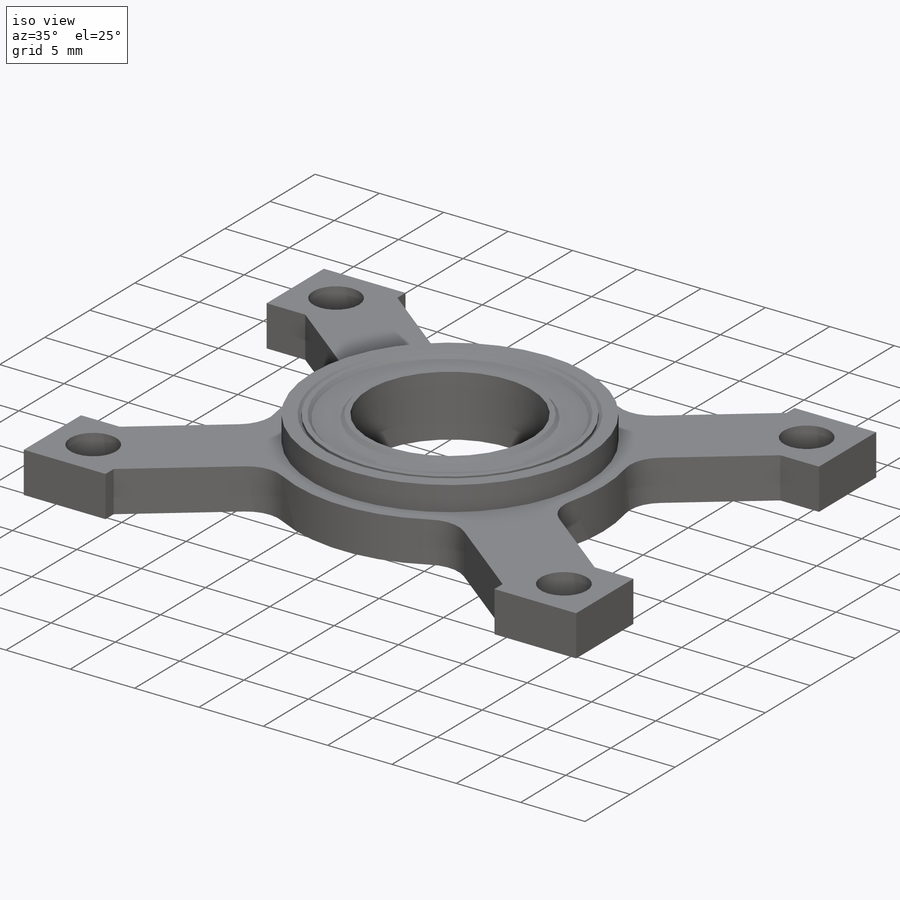
[diagram: iso view]
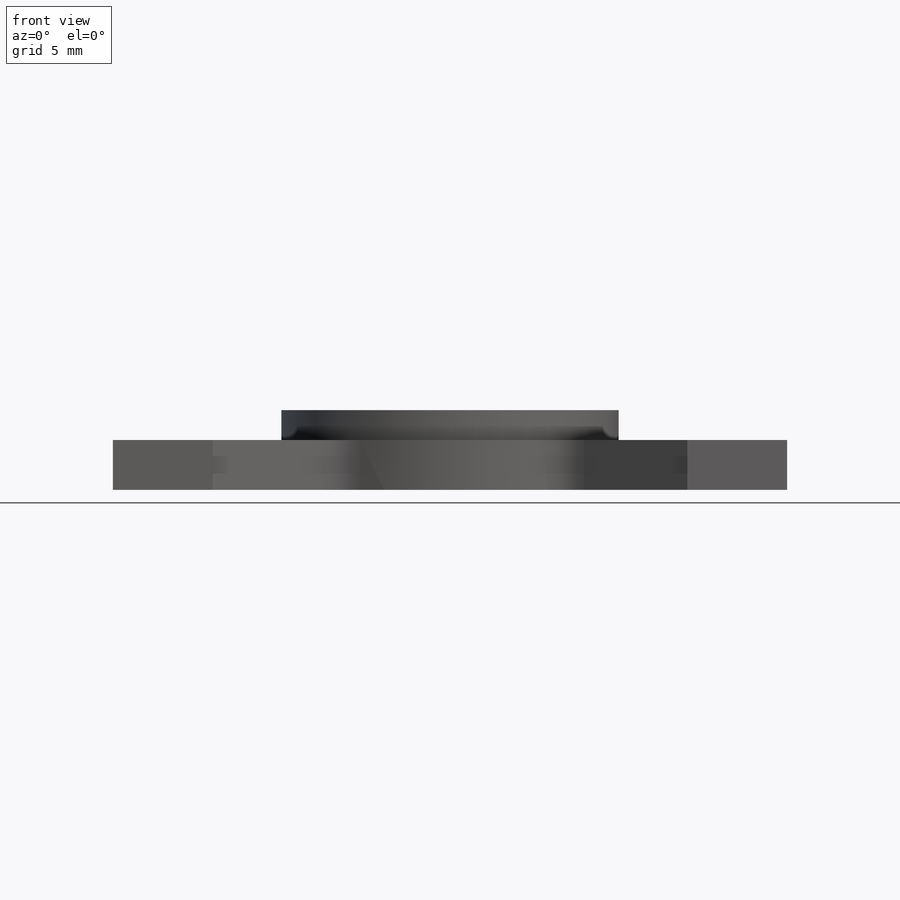
[diagram: front view]
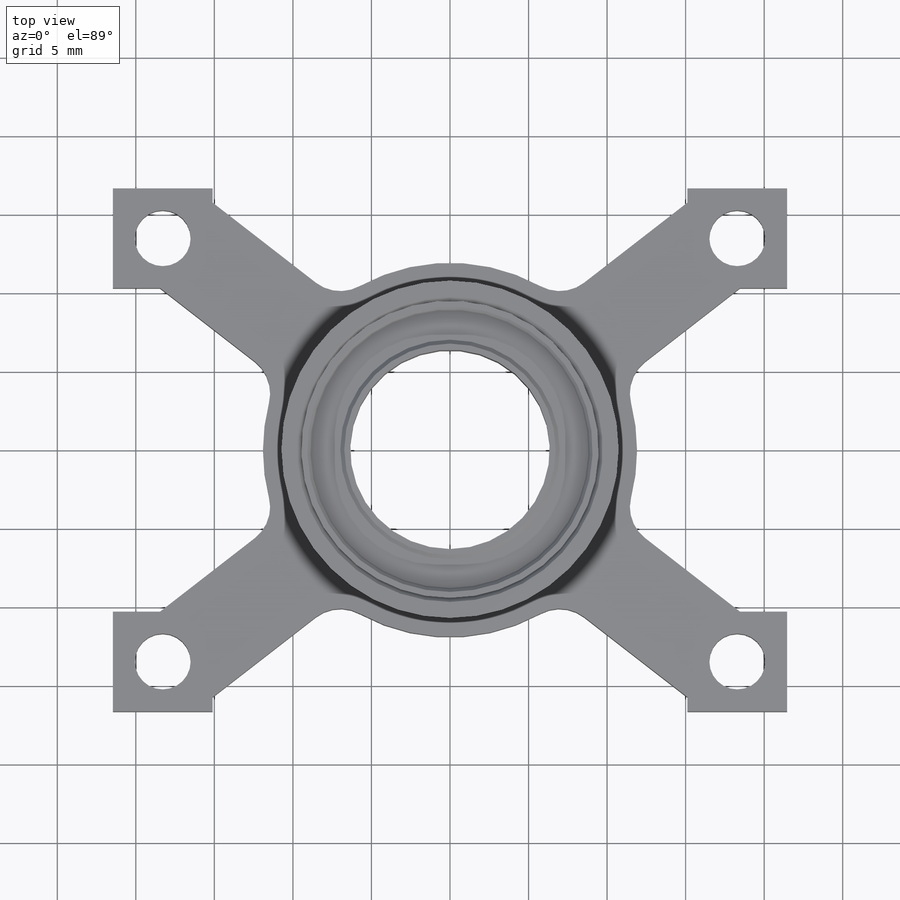
[diagram: top view]
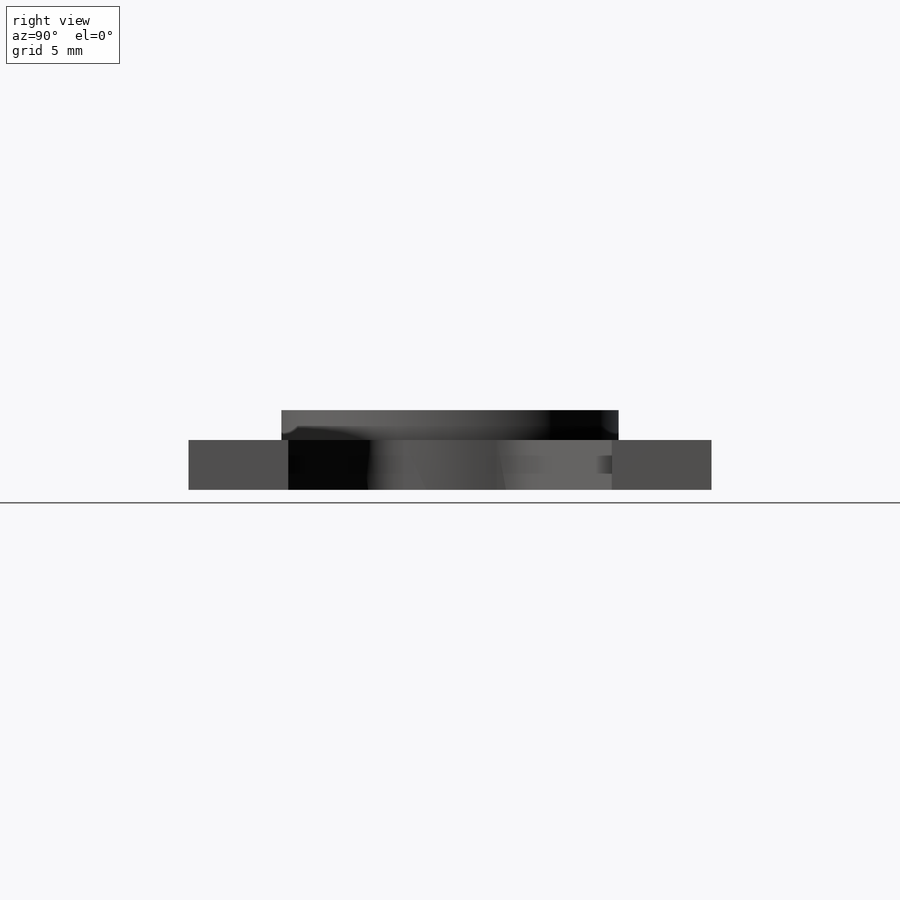
[diagram: right view]
SOLIDWORKS PART (.sldprt)
format: sldprt  version: not decoded by parser v0  size: 378,880 bytes
history: native  units: mm
features: sketch x5, extrude x5, chamfer x3, material x1, plane x1 (+13 scaffold rows collapsed)
feature tree (28):
  scaffold x13  (default folders/planes/origin — collapsed)
  material  "6061 Alloy"
  sketch  "Sketch1"  dims[c1.D1=18.923mm c1.D2=23.8125mm c1.D11=3.556mm c1.D12=3.556mm c1.D14=2.54mm c1.D3=33.2994mm c1.D4=42.926mm c1.D5=30.226mm c1.D6=15.113mm c1.D7=~54.327631mm c2.D7=~0.394407deg c3.D7=3.175mm c3.D8=3.175mm c3.D9=20.5994mm c3.D10=3.175mm c3.D12=18.288mm c3.D13=13.4747mm]
  extrude  "Boss-Extrude1"  Depth=3.175mm
  sketch  "Sketch2"  dims[D1=21.463mm D2=18.923mm]
  extrude  "Boss-Extrude2"  Depth=1.905mm
  chamfer  "Chamfer1"  Distance=0.254mm Angle=45deg
  sketch  "Sketch3"  dims[D1=0.635mm]
  extrude  "Boss-Extrude3"  Depth=4.7625mm
  chamfer  "Chamfer2"  Distance=0.254mm Angle=45deg
  plane  "Plane1"
  sketch  "Sketch4"  dims[D1=0.635mm]
  extrude  "Boss-Extrude4"  Depth=4.2545mm
  sketch  "Sketch5"  dims[D1=12.7mm]
  extrude  "Boss-Extrude5"  Depth=4.7625mm
  chamfer  "Chamfer3"  Distance=0.254mm Angle=45deg
decode coverage: 13 of 13 modeling features carry decoded parameters
note: ~ marks probable driven/reference dimensions
note: suppression state not decoded; provenance and decode notes live in map.json
